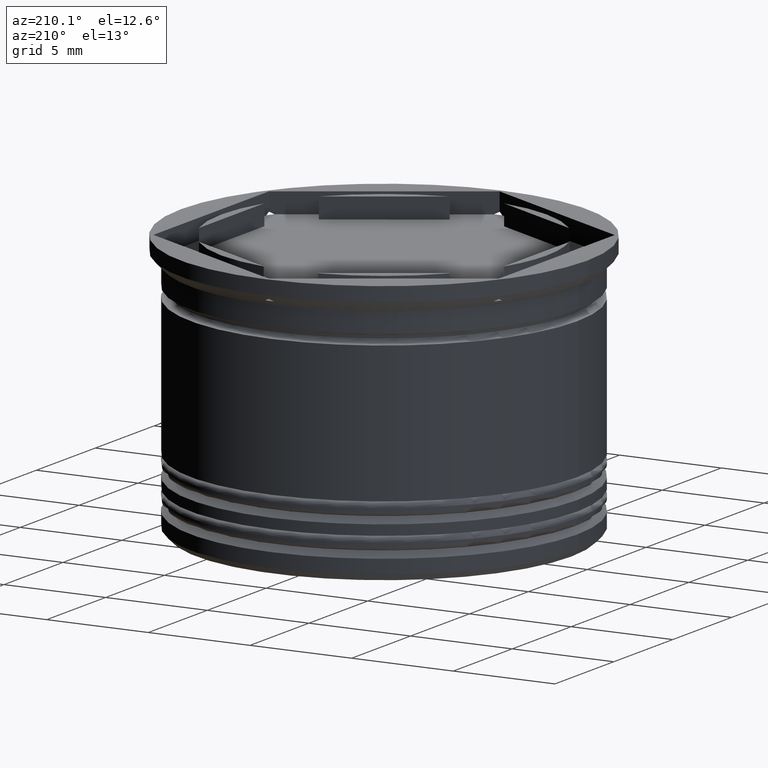
[diagram: clean part render]
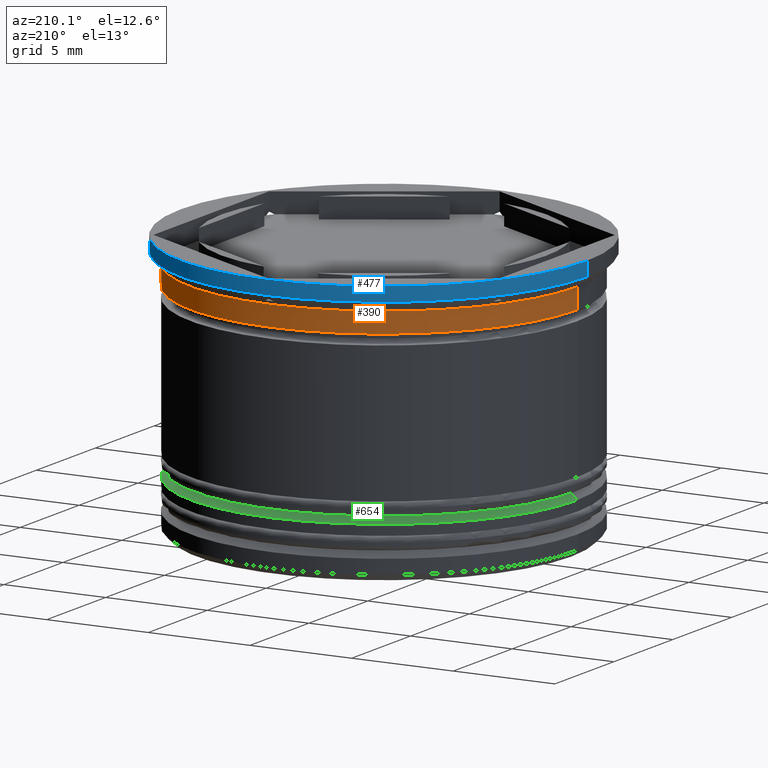
[diagram: same view with three faces highlighted in distinct colors, each labeled with its STEP entity id]
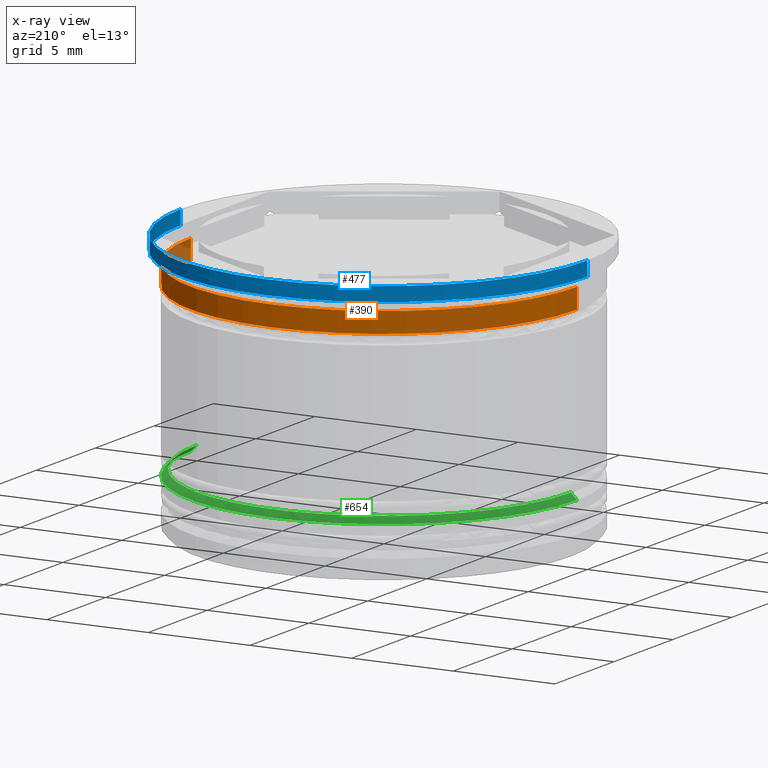
[diagram: x-ray of the same camera — body ghosted, the three highlighted faces saturated]
A machine part, auxiliary view with three faces highlighted in distinct colors.
The next image is the same camera in x-ray (body ghosted, the three faces saturated) — at least one of them is partly hidden behind the body in this view.
Their STEP definitions:

[orange] entity #390 — the highlighted cylindrical surface (partial cylindrical patch) has radius 9.5 mm, axis along (-0, -0, 1).
#35 = AXIS2_PLACEMENT_3D ( 'NONE', #781, #2112, #1761 ) ;
#81 = EDGE_CURVE ( 'NONE', #923, #488, #144, .T. ) ;
#85 = AXIS2_PLACEMENT_3D ( 'NONE', #1475, #1976, #111 ) ;
#111 = DIRECTION ( 'NONE',  ( 1.000000000000000000, 0.000000000000000000, 0.000000000000000000 ) ) ;
#121 = CIRCLE ( 'NONE', #85, 9.499999999999998224 ) ;
#144 = CIRCLE ( 'NONE', #35, 9.499999999999998224 ) ;
#169 = ORIENTED_EDGE ( 'NONE', *, *, #81, .T. ) ;
#226 = DIRECTION ( 'NONE',  ( -0.000000000000000000, -0.000000000000000000, 1.000000000000000000 ) ) ;
#350 = CARTESIAN_POINT ( 'NONE',  ( 9.499999999999998224, 0.000000000000000000, -2.199999999999999734 ) ) ;
#390 = ADVANCED_FACE ( 'NONE', ( #2026 ), #1723, .T. ) ;
#430 = LINE ( 'NONE', #1698, #1095 ) ;
#488 = VERTEX_POINT ( 'NONE', #764 ) ;
#501 = DIRECTION ( 'NONE',  ( -0.000000000000000000, -0.000000000000000000, 1.000000000000000000 ) ) ;
#513 = CARTESIAN_POINT ( 'NONE',  ( -9.499999999999998224, 1.163414459189985288E-15, 0.000000000000000000 ) ) ;
#529 = DIRECTION ( 'NONE',  ( -0.000000000000000000, -0.000000000000000000, 1.000000000000000000 ) ) ;
#764 = CARTESIAN_POINT ( 'NONE',  ( -9.499999999999998224, 1.163414459189985288E-15, -2.199999999999999734 ) ) ;
#781 = CARTESIAN_POINT ( 'NONE',  ( 0.000000000000000000, 0.000000000000000000, -2.199999999999999734 ) ) ;
#923 = VERTEX_POINT ( 'NONE', #350 ) ;
#986 = ORIENTED_EDGE ( 'NONE', *, *, #2031, .F. ) ;
#1023 = CARTESIAN_POINT ( 'NONE',  ( 9.499999999999998224, 0.000000000000000000, -1.199999999999999067 ) ) ;
#1095 = VECTOR ( 'NONE', #529, 1000.000000000000000 ) ;
#1203 = CARTESIAN_POINT ( 'NONE',  ( 0.000000000000000000, 0.000000000000000000, 0.000000000000000000 ) ) ;
#1222 = AXIS2_PLACEMENT_3D ( 'NONE', #1203, #226, #1876 ) ;
#1237 = VERTEX_POINT ( 'NONE', #1023 ) ;
#1347 = CARTESIAN_POINT ( 'NONE',  ( -9.499999999999998224, 1.163414459189985288E-15, -1.199999999999999067 ) ) ;
#1475 = CARTESIAN_POINT ( 'NONE',  ( 0.000000000000000000, 0.000000000000000000, -1.199999999999999067 ) ) ;
#1503 = LINE ( 'NONE', #513, #2005 ) ;
#1698 = CARTESIAN_POINT ( 'NONE',  ( 9.499999999999998224, 0.000000000000000000, 0.000000000000000000 ) ) ;
#1723 = CYLINDRICAL_SURFACE ( 'NONE', #1222, 9.499999999999998224 ) ;
#1749 = VERTEX_POINT ( 'NONE', #1347 ) ;
#1761 = DIRECTION ( 'NONE',  ( 1.000000000000000000, 0.000000000000000000, 0.000000000000000000 ) ) ;
#1774 = EDGE_CURVE ( 'NONE', #488, #1749, #1503, .T. ) ;
#1812 = ORIENTED_EDGE ( 'NONE', *, *, #1914, .F. ) ;
#1843 = ORIENTED_EDGE ( 'NONE', *, *, #1774, .T. ) ;
#1876 = DIRECTION ( 'NONE',  ( 1.000000000000000000, 0.000000000000000000, 0.000000000000000000 ) ) ;
#1906 = EDGE_LOOP ( 'NONE', ( #169, #1843, #986, #1812 ) ) ;
#1914 = EDGE_CURVE ( 'NONE', #923, #1237, #430, .T. ) ;
#1976 = DIRECTION ( 'NONE',  ( -0.000000000000000000, -0.000000000000000000, 1.000000000000000000 ) ) ;
#2005 = VECTOR ( 'NONE', #501, 1000.000000000000000 ) ;
#2026 = FACE_OUTER_BOUND ( 'NONE', #1906, .T. ) ;
#2031 = EDGE_CURVE ( 'NONE', #1237, #1749, #121, .T. ) ;
#2112 = DIRECTION ( 'NONE',  ( -0.000000000000000000, -0.000000000000000000, 1.000000000000000000 ) ) ;

[blue] entity #477 — the highlighted cylindrical surface (partial cylindrical patch) has radius 10 mm, axis along (-0, -0, 1).
#91 = ORIENTED_EDGE ( 'NONE', *, *, #1014, .T. ) ;
#115 = CARTESIAN_POINT ( 'NONE',  ( 10.00000000000000000, 0.000000000000000000, 0.000000000000000000 ) ) ;
#148 = CARTESIAN_POINT ( 'NONE',  ( 10.00000000000000000, 0.000000000000000000, 0.000000000000000000 ) ) ;
#176 = EDGE_CURVE ( 'NONE', #2119, #425, #1656, .T. ) ;
#248 = VECTOR ( 'NONE', #1502, 1000.000000000000000 ) ;
#255 = DIRECTION ( 'NONE',  ( -0.000000000000000000, -0.000000000000000000, 1.000000000000000000 ) ) ;
#276 = DIRECTION ( 'NONE',  ( 1.000000000000000000, 0.000000000000000000, 0.000000000000000000 ) ) ;
#294 = EDGE_LOOP ( 'NONE', ( #597, #91, #792, #998 ) ) ;
#382 = DIRECTION ( 'NONE',  ( -0.000000000000000000, -0.000000000000000000, 1.000000000000000000 ) ) ;
#405 = CARTESIAN_POINT ( 'NONE',  ( -10.00000000000000000, 1.224646799147353256E-15, 0.000000000000000000 ) ) ;
#424 = FACE_OUTER_BOUND ( 'NONE', #294, .T. ) ;
#425 = VERTEX_POINT ( 'NONE', #115 ) ;
#431 = AXIS2_PLACEMENT_3D ( 'NONE', #1113, #1103, #1806 ) ;
#477 = ADVANCED_FACE ( 'NONE', ( #424 ), #603, .T. ) ;
#540 = EDGE_CURVE ( 'NONE', #2119, #1204, #696, .T. ) ;
#597 = ORIENTED_EDGE ( 'NONE', *, *, #540, .T. ) ;
#603 = CYLINDRICAL_SURFACE ( 'NONE', #2145, 10.00000000000000000 ) ;
#696 = CIRCLE ( 'NONE', #2105, 10.00000000000000000 ) ;
#792 = ORIENTED_EDGE ( 'NONE', *, *, #1100, .F. ) ;
#844 = CARTESIAN_POINT ( 'NONE',  ( -10.00000000000000000, 1.224646799147353256E-15, -0.6999999999999968470 ) ) ;
#998 = ORIENTED_EDGE ( 'NONE', *, *, #176, .F. ) ;
#1014 = EDGE_CURVE ( 'NONE', #1204, #1551, #1882, .T. ) ;
#1033 = DIRECTION ( 'NONE',  ( -1.000000000000000000, 0.000000000000000000, 0.000000000000000000 ) ) ;
#1098 = CARTESIAN_POINT ( 'NONE',  ( 0.000000000000000000, 0.000000000000000000, -0.6999999999999968470 ) ) ;
#1100 = EDGE_CURVE ( 'NONE', #425, #1551, #1193, .T. ) ;
#1103 = DIRECTION ( 'NONE',  ( -0.000000000000000000, -0.000000000000000000, 1.000000000000000000 ) ) ;
#1113 = CARTESIAN_POINT ( 'NONE',  ( 0.000000000000000000, 0.000000000000000000, 0.000000000000000000 ) ) ;
#1193 = CIRCLE ( 'NONE', #431, 10.00000000000000000 ) ;
#1204 = VERTEX_POINT ( 'NONE', #844 ) ;
#1321 = CARTESIAN_POINT ( 'NONE',  ( 10.00000000000000000, 0.000000000000000000, -0.6999999999999968470 ) ) ;
#1502 = DIRECTION ( 'NONE',  ( -0.000000000000000000, -0.000000000000000000, 1.000000000000000000 ) ) ;
#1551 = VERTEX_POINT ( 'NONE', #405 ) ;
#1656 = LINE ( 'NONE', #148, #248 ) ;
#1768 = DIRECTION ( 'NONE',  ( -0.000000000000000000, -0.000000000000000000, 1.000000000000000000 ) ) ;
#1806 = DIRECTION ( 'NONE',  ( 1.000000000000000000, 0.000000000000000000, 0.000000000000000000 ) ) ;
#1882 = LINE ( 'NONE', #2089, #2037 ) ;
#2037 = VECTOR ( 'NONE', #382, 1000.000000000000000 ) ;
#2069 = CARTESIAN_POINT ( 'NONE',  ( 0.000000000000000000, 0.000000000000000000, 0.000000000000000000 ) ) ;
#2089 = CARTESIAN_POINT ( 'NONE',  ( -10.00000000000000000, 1.224646799147353256E-15, 0.000000000000000000 ) ) ;
#2105 = AXIS2_PLACEMENT_3D ( 'NONE', #1098, #1768, #1033 ) ;
#2119 = VERTEX_POINT ( 'NONE', #1321 ) ;
#2145 = AXIS2_PLACEMENT_3D ( 'NONE', #2069, #255, #276 ) ;

[green] entity #654 — the highlighted conical surface has half-angle 45 deg.
#4 = CONICAL_SURFACE ( 'NONE', #1692, 8.999999999999992895, 0.7853981633974533860 ) ;
#108 = EDGE_CURVE ( 'NONE', #1565, #1381, #608, .T. ) ;
#171 = CARTESIAN_POINT ( 'NONE',  ( 0.000000000000000000, 0.000000000000000000, -10.20000000000000639 ) ) ;
#192 = EDGE_CURVE ( 'NONE', #942, #1565, #1515, .T. ) ;
#203 = ORIENTED_EDGE ( 'NONE', *, *, #1435, .T. ) ;
#223 = CARTESIAN_POINT ( 'NONE',  ( 9.199999999999999289, 0.000000000000000000, -10.20000000000000639 ) ) ;
#303 = CARTESIAN_POINT ( 'NONE',  ( -9.500000000000001776, 1.163414459189985682E-15, -10.50000000000000355 ) ) ;
#404 = ORIENTED_EDGE ( 'NONE', *, *, #192, .F. ) ;
#447 = DIRECTION ( 'NONE',  ( 0.000000000000000000, 0.000000000000000000, -1.000000000000000000 ) ) ;
#489 = EDGE_CURVE ( 'NONE', #1381, #582, #1299, .T. ) ;
#582 = VERTEX_POINT ( 'NONE', #1873 ) ;
#591 = CARTESIAN_POINT ( 'NONE',  ( -8.999999999999992895, 0.000000000000000000, -10.00000000000000000 ) ) ;
#608 = LINE ( 'NONE', #591, #948 ) ;
#654 = ADVANCED_FACE ( 'NONE', ( #1387 ), #4, .T. ) ;
#818 = EDGE_LOOP ( 'NONE', ( #404, #203, #1060, #1878 ) ) ;
#821 = LINE ( 'NONE', #841, #1268 ) ;
#828 = DIRECTION ( 'NONE',  ( -1.000000000000000000, 0.000000000000000000, 0.000000000000000000 ) ) ;
#841 = CARTESIAN_POINT ( 'NONE',  ( 8.999999999999992895, 1.102182119232616925E-15, -10.00000000000000000 ) ) ;
#856 = DIRECTION ( 'NONE',  ( 0.000000000000000000, 0.000000000000000000, -1.000000000000000000 ) ) ;
#862 = CARTESIAN_POINT ( 'NONE',  ( -9.199999999999999289, 1.126675055215564822E-15, -10.20000000000000639 ) ) ;
#942 = VERTEX_POINT ( 'NONE', #223 ) ;
#943 = DIRECTION ( 'NONE',  ( -1.000000000000000000, 0.000000000000000000, 0.000000000000000000 ) ) ;
#948 = VECTOR ( 'NONE', #958, 1000.000000000000000 ) ;
#958 = DIRECTION ( 'NONE',  ( -0.7071067811865512365, 0.000000000000000000, -0.7071067811865439090 ) ) ;
#1025 = DIRECTION ( 'NONE',  ( -1.000000000000000000, 0.000000000000000000, 0.000000000000000000 ) ) ;
#1060 = ORIENTED_EDGE ( 'NONE', *, *, #489, .F. ) ;
#1089 = AXIS2_PLACEMENT_3D ( 'NONE', #1440, #447, #943 ) ;
#1181 = DIRECTION ( 'NONE',  ( 0.7071067811865512365, 8.659560562354978464E-17, -0.7071067811865439090 ) ) ;
#1268 = VECTOR ( 'NONE', #1181, 1000.000000000000000 ) ;
#1299 = CIRCLE ( 'NONE', #1089, 9.500000000000001776 ) ;
#1381 = VERTEX_POINT ( 'NONE', #303 ) ;
#1387 = FACE_OUTER_BOUND ( 'NONE', #818, .T. ) ;
#1435 = EDGE_CURVE ( 'NONE', #942, #582, #821, .T. ) ;
#1440 = CARTESIAN_POINT ( 'NONE',  ( 0.000000000000000000, 0.000000000000000000, -10.50000000000000355 ) ) ;
#1515 = CIRCLE ( 'NONE', #1856, 9.199999999999999289 ) ;
#1565 = VERTEX_POINT ( 'NONE', #862 ) ;
#1692 = AXIS2_PLACEMENT_3D ( 'NONE', #2035, #856, #1025 ) ;
#1845 = DIRECTION ( 'NONE',  ( -0.000000000000000000, -0.000000000000000000, 1.000000000000000000 ) ) ;
#1856 = AXIS2_PLACEMENT_3D ( 'NONE', #171, #1845, #828 ) ;
#1873 = CARTESIAN_POINT ( 'NONE',  ( 9.500000000000001776, 0.000000000000000000, -10.50000000000000355 ) ) ;
#1878 = ORIENTED_EDGE ( 'NONE', *, *, #108, .F. ) ;
#2035 = CARTESIAN_POINT ( 'NONE',  ( 0.000000000000000000, 0.000000000000000000, -10.00000000000000000 ) ) ;